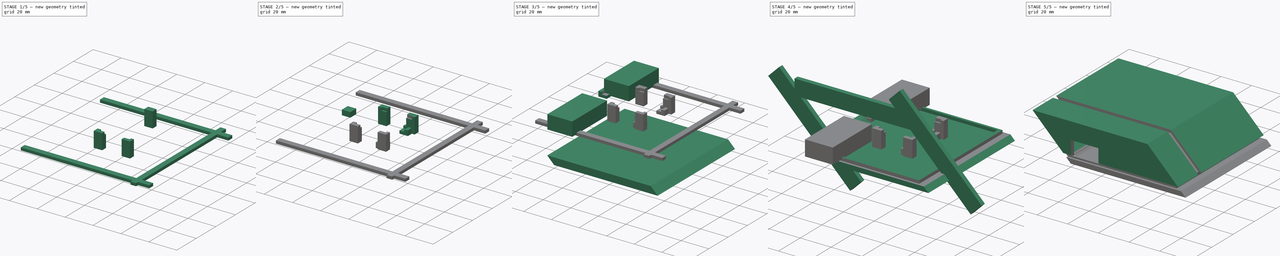
[diagram: build sequence overview — one tinted view per stage of 5, left to right]
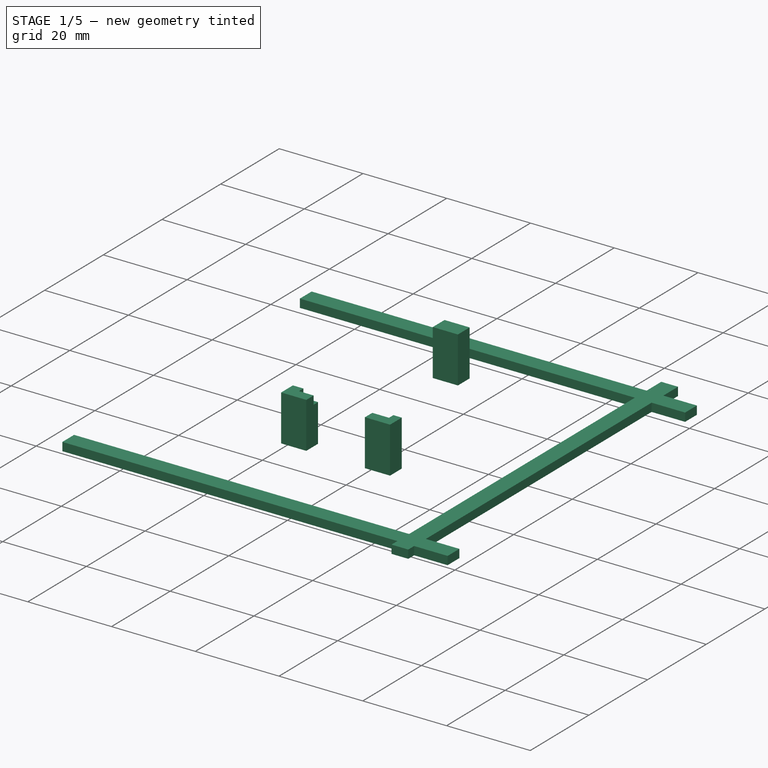
[diagram: stage 1 of 5 — iso view after this stage's code; geometry added in this stage tinted green]
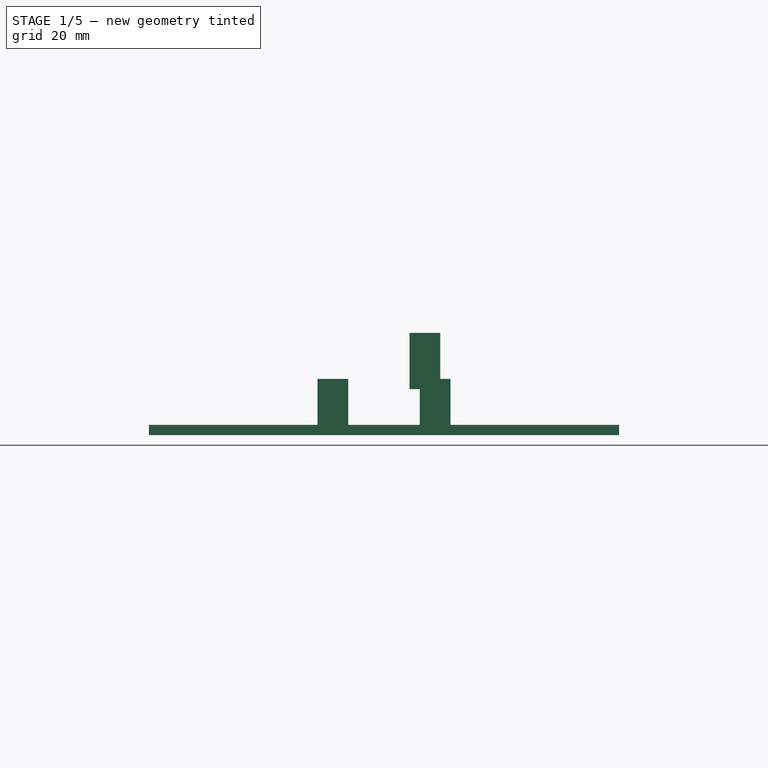
[diagram: stage 1 of 5 — front view after this stage's code; geometry added in this stage tinted green]
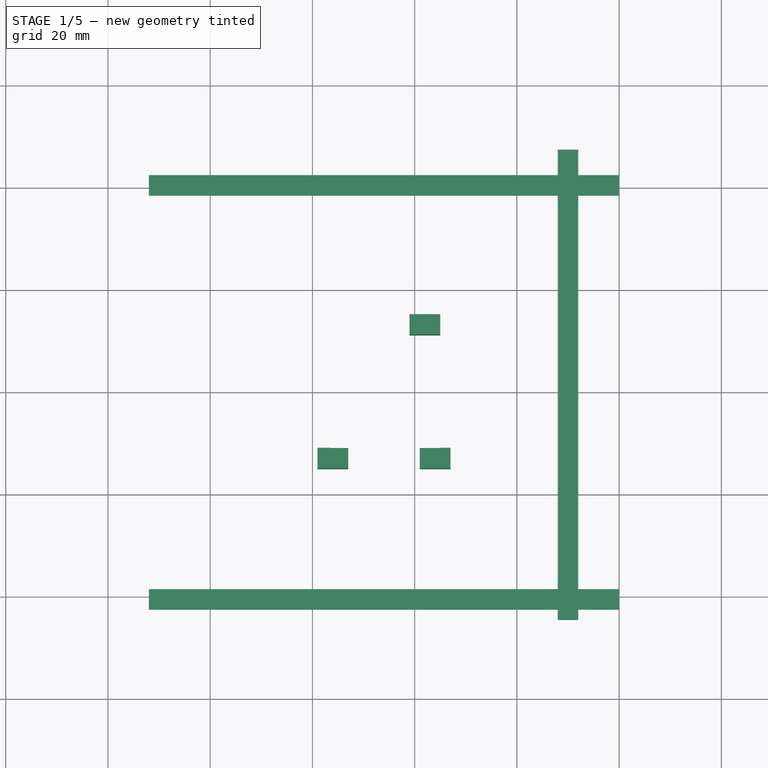
[diagram: stage 1 of 5 — top view after this stage's code; geometry added in this stage tinted green]
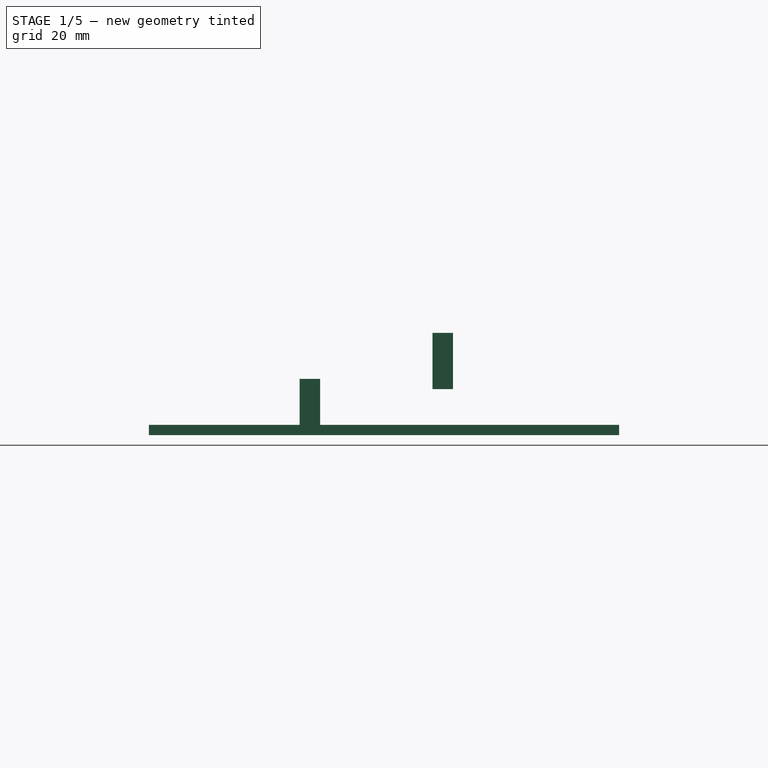
[diagram: stage 1 of 5 — right view after this stage's code; geometry added in this stage tinted green]
FCSTD DOCUMENT  (FreeCAD 0.17R13522 (Git))
Label: case
License: All rights reserved
LicenseURL: http://en.wikipedia.org/wiki/All_rights_reserved
objects: PartDesign::FeatureBase×22, Part::Cut×13, Part::Box×12, Part::MultiFuse×8, Part::Thickness×2, App::DocumentObjectGroup×1, Sketcher::SketchObject×1, PartDesign::Pad×1, PartDesign::Body×1, Part::MultiCommon×1
note: 62 computed .brp shape members not serialized (recipe doc carries the construction recipe); baked Part::Feature solids carry a one-line shape summary decoded from their .brp

FEATURE [Part::Box] Box010  label="Cube010"
  AttacherType = Attacher::AttachEngine3D
  Height = 11
  Length = 6
  Placement = pos=(21,-26,-2) rot=(0,0,1;0rad)
  Width = 4
FEATURE [PartDesign::FeatureBase] Clone015
  BaseFeature = -> Box010
  Placement = pos=(39,-29,7) rot=(0,0,1;0rad)
FEATURE [PartDesign::FeatureBase] Clone016
  BaseFeature = -> Box010
  Placement = pos=(21,-55,-2) rot=(0,0,1;0rad)
FEATURE [PartDesign::FeatureBase] Clone017
  BaseFeature = -> Box010
  Placement = pos=(23.5,-52.5,7) rot=(0,0,1;0rad)
FEATURE [PartDesign::FeatureBase] Clone018
  BaseFeature = -> Box010
  Placement = pos=(41,-55,-2) rot=(0,0,1;0rad)
FEATURE [PartDesign::FeatureBase] Clone019
  BaseFeature = -> Box010
  Placement = pos=(39,-52.5,7) rot=(0,0,1;0rad)
FEATURE [Part::Cut] Cut010
  Base = -> Clone016
  Tool = -> Clone017
FEATURE [Part::Cut] Cut011
  Base = -> Clone018
  Tool = -> Clone019
FEATURE [Part::Box] Box011  label="Cube011"
  AttacherType = Attacher::AttachEngine3D
  Height = 2
  Length = 92
  Placement = pos=(-12,-1.5,-2) rot=(0,0,1;0rad)
  Width = 4
FEATURE [PartDesign::FeatureBase] Clone020
  BaseFeature = -> Box011
  Placement = pos=(-12,-82.5,-2) rot=(0,0,1;0rad)
FEATURE [PartDesign::FeatureBase] Clone021
  BaseFeature = -> Box011
  Placement = pos=(72,-84.5,-2) rot=(0,0,1;1.5708rad)
FEATURE [Part::MultiFuse] Fusion007
  Shapes = -> [Box011,Clone020,Clone021]
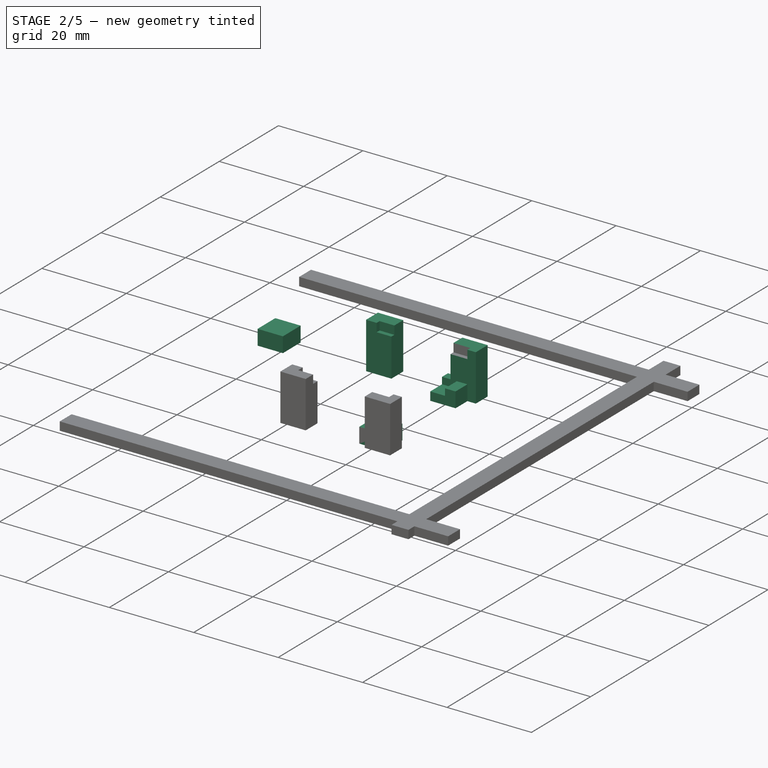
[diagram: stage 2 of 5 — iso view after this stage's code; geometry added in this stage tinted green]
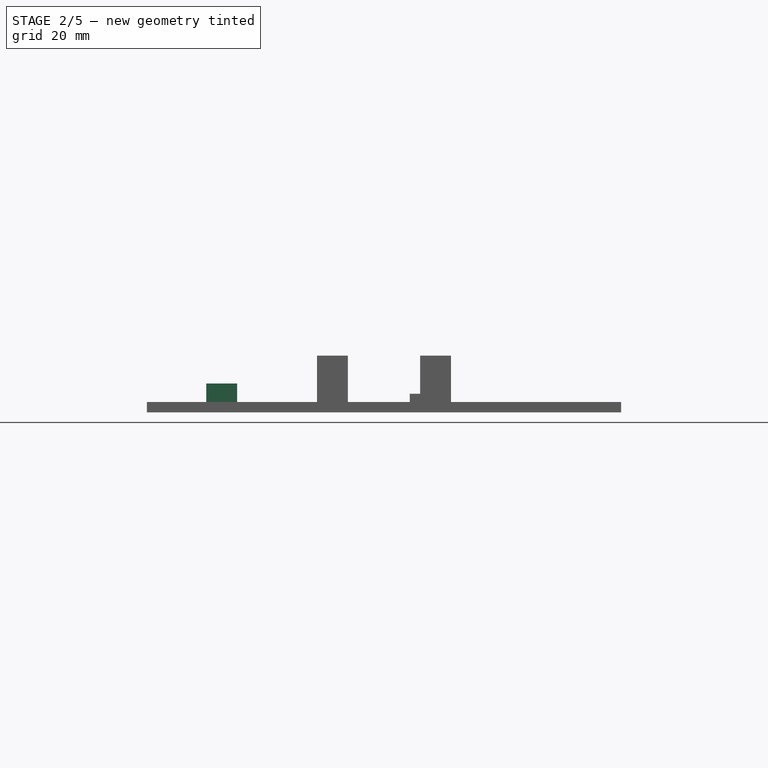
[diagram: stage 2 of 5 — front view after this stage's code; geometry added in this stage tinted green]
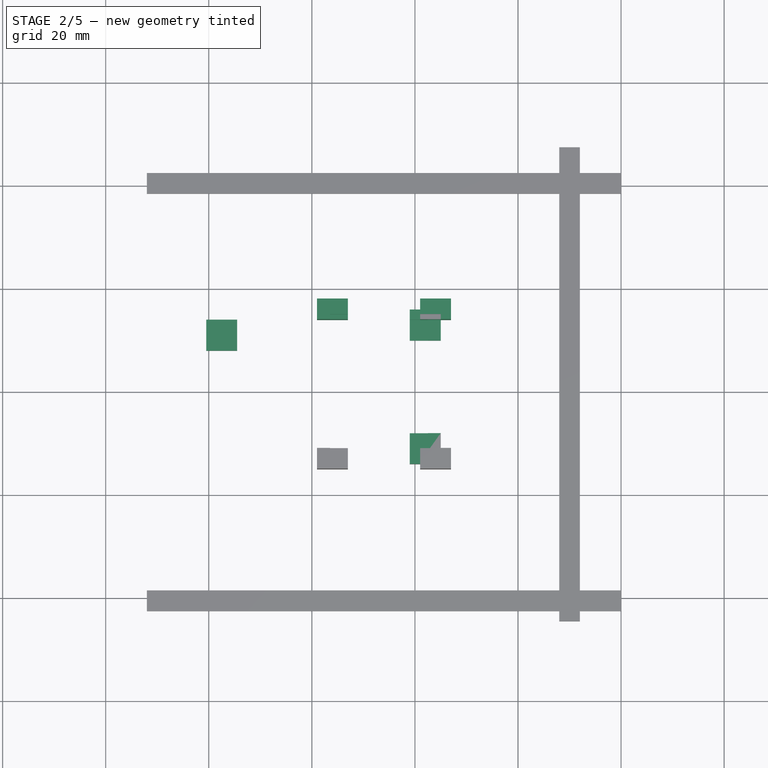
[diagram: stage 2 of 5 — top view after this stage's code; geometry added in this stage tinted green]
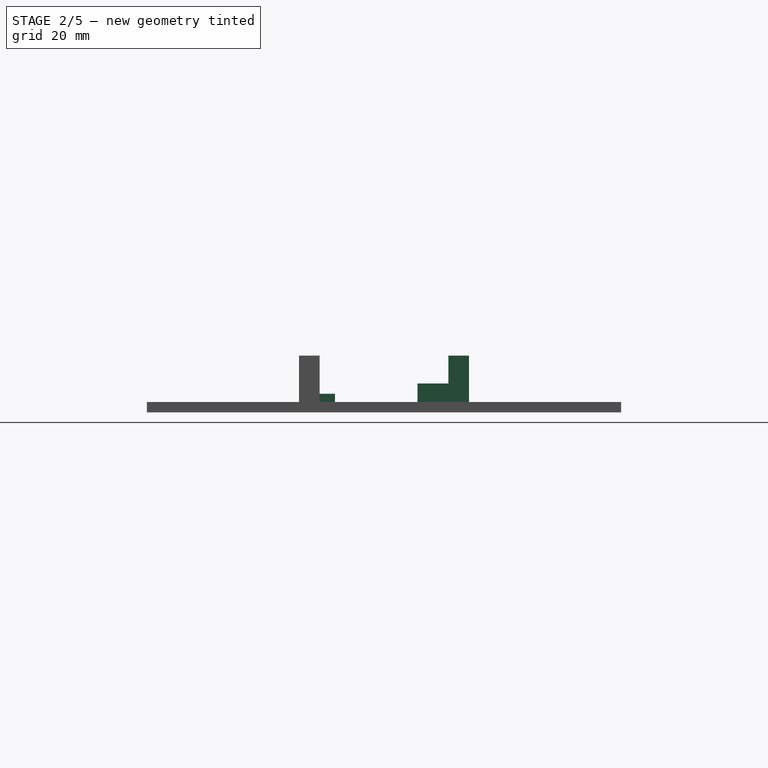
[diagram: stage 2 of 5 — right view after this stage's code; geometry added in this stage tinted green]
FEATURE [Part::Box] Box009  label="Cube009"
  AttacherType = Attacher::AttachEngine3D
  Height = 3.6
  Length = 6
  Placement = pos=(-3,-54,-2) rot=(0,0,1;0rad)
  Width = 6
FEATURE [PartDesign::FeatureBase] Clone007
  BaseFeature = -> Box009
  Placement = pos=(39,-54,-2) rot=(0,0,1;0rad)
FEATURE [PartDesign::FeatureBase] Clone008
  BaseFeature = -> Box009
  Placement = pos=(39,-30,-2) rot=(0,0,1;0rad)
FEATURE [PartDesign::FeatureBase] Clone010
  BaseFeature = -> Box009
  Placement = pos=(-0.5,-32,0) rot=(0,0,1;0rad)
FEATURE [PartDesign::FeatureBase] Clone011
  BaseFeature = -> Box009
  Placement = pos=(36.5,-51.5,0) rot=(0,0,1;0rad)
FEATURE [PartDesign::FeatureBase] Clone012
  BaseFeature = -> Box009
  Placement = pos=(36.5,-32,0) rot=(0,0,1;0rad)
FEATURE [Part::Cut] Cut006
  Base = -> Clone007
  Tool = -> Clone011
FEATURE [Part::Cut] Cut007
  Base = -> Clone008
  Tool = -> Clone012
FEATURE [PartDesign::FeatureBase] Clone013
  BaseFeature = -> Box010
  Placement = pos=(23.5,-29,7) rot=(0,0,1;0rad)
FEATURE [PartDesign::FeatureBase] Clone014
  BaseFeature = -> Box010
  Placement = pos=(41,-26,-2) rot=(0,0,1;0rad)
FEATURE [Part::Cut] Cut008
  Base = -> Box010
  Tool = -> Clone013
FEATURE [Part::Cut] Cut009
  Base = -> Clone014
  Tool = -> Clone015
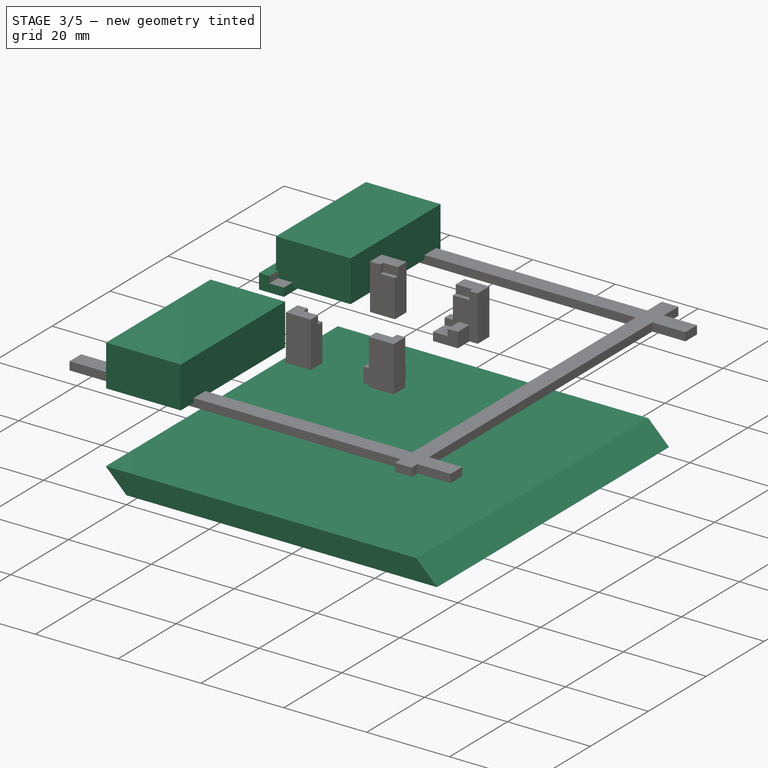
[diagram: stage 3 of 5 — iso view after this stage's code; geometry added in this stage tinted green]
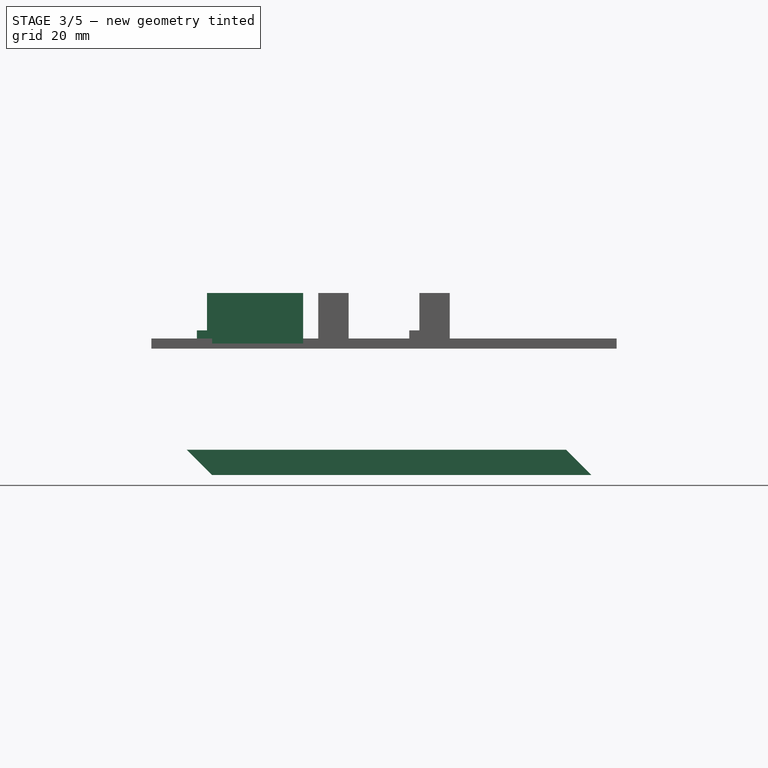
[diagram: stage 3 of 5 — front view after this stage's code; geometry added in this stage tinted green]
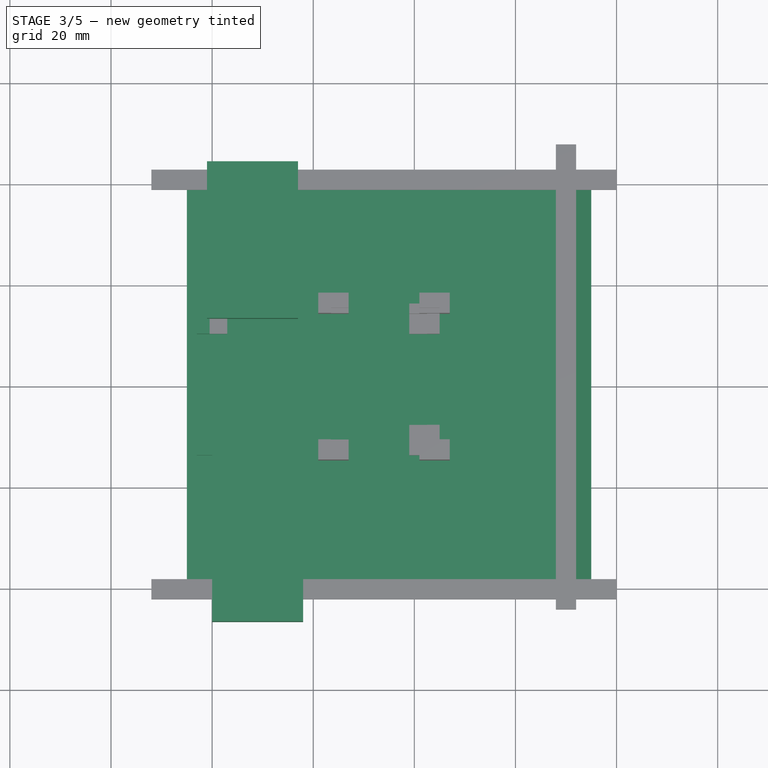
[diagram: stage 3 of 5 — top view after this stage's code; geometry added in this stage tinted green]
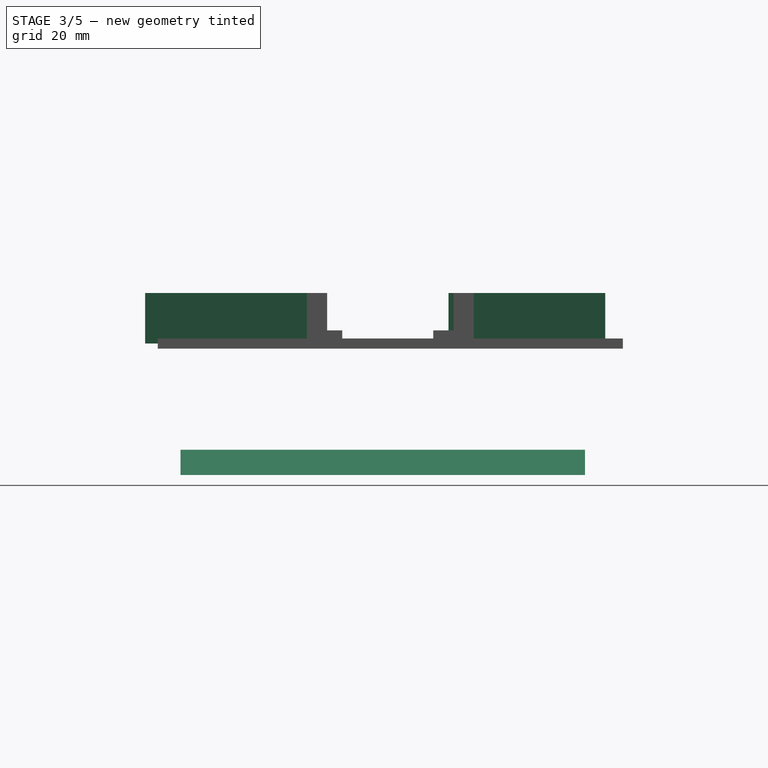
[diagram: stage 3 of 5 — right view after this stage's code; geometry added in this stage tinted green]
FEATURE [App::DocumentObjectGroup] Group  label="imu_pcb"
  Group = -> [Fusion001]
FEATURE [Sketcher::SketchObject] Sketch
  MapMode = 5
  Placement = pos=(0,0,0) rot=(1,0,0;1.5708rad)
  Support = -> [XZ_Plane]
  sketch-geometry (4):
    g0: LineSegment StartX=50 StartY=20 StartZ=0 EndX=75 EndY=-5 EndZ=0
    g1: LineSegment StartX=75 StartY=-5 StartZ=0 EndX=0 EndY=-5 EndZ=0
    g2: LineSegment StartX=0 StartY=-5 StartZ=0 EndX=-25 EndY=20 EndZ=0
    g3: LineSegment StartX=-25 StartY=20 StartZ=0 EndX=50 EndY=20 EndZ=0
  constraints (12):
    c: Coincident(g0,g1)
    c: Coincident(g1,g2)
    c: Coincident(g3,g0)
    c: Angle(g0,g1) = 0.785398
    c: Angle(g-1,g2) = 2.35619
    c: Horizontal(g3)
    c: Horizontal(g1)
    c: DistanceY(g0,g0) = 25
    c: DistanceX(g3,g0) = 75
    c: DistanceX(g-1,g0) = 75
    c: DistanceY(g1,g-1) = 5
    c: Coincident(g2,g3)
FEATURE [PartDesign::Pad] Pad
  Length = 80
  Length2 = 100
  Placement = pos=(0,0,0) rot=(1,0,0;1.5708rad)
  Profile = -> Sketch
  Type = 0
FEATURE [PartDesign::Body] Body
  Group = -> [Sketch,Pad]
  Origin = -> Origin
  Tip = -> Pad
FEATURE [Part::Box] Box005  label="Cube005"
  AttacherType = Attacher::AttachEngine3D
  Height = 10
  Length = 18
  Placement = pos=(0,-87,-1) rot=(0,0,1;0rad)
  Width = 36
FEATURE [Part::Box] Box006  label="Cube006"
  AttacherType = Attacher::AttachEngine3D
  Height = 10
  Length = 18
  Placement = pos=(-1,-27,-1) rot=(0,0,1;0rad)
  Width = 31
FEATURE [PartDesign::FeatureBase] Clone
  BaseFeature = -> Body
FEATURE [Part::Box] Box007  label="Cube007"
  AttacherType = Attacher::AttachEngine3D
  Height = 6
  Length = 101
  Placement = pos=(-18,-100,-6) rot=(0,0,1;0rad)
  Width = 112
FEATURE [Part::MultiCommon] Common
  Placement = pos=(0,0,-22) rot=(0,0,1;0rad)
  Shapes = -> [Clone,Box007]
FEATURE [Part::MultiFuse] Fusion003
  Shapes = -> [Box005,Box006]
FEATURE [PartDesign::FeatureBase] Clone006
  BaseFeature = -> Box009
  Placement = pos=(-3,-30,-2) rot=(0,0,1;0rad)
FEATURE [PartDesign::FeatureBase] Clone009
  BaseFeature = -> Box009
  Placement = pos=(-0.5,-51.5,0) rot=(0,0,1;0rad)
FEATURE [Part::Cut] Cut004
  Base = -> Box009
  Tool = -> Clone009
FEATURE [Part::Cut] Cut005
  Base = -> Clone006
  Tool = -> Clone010
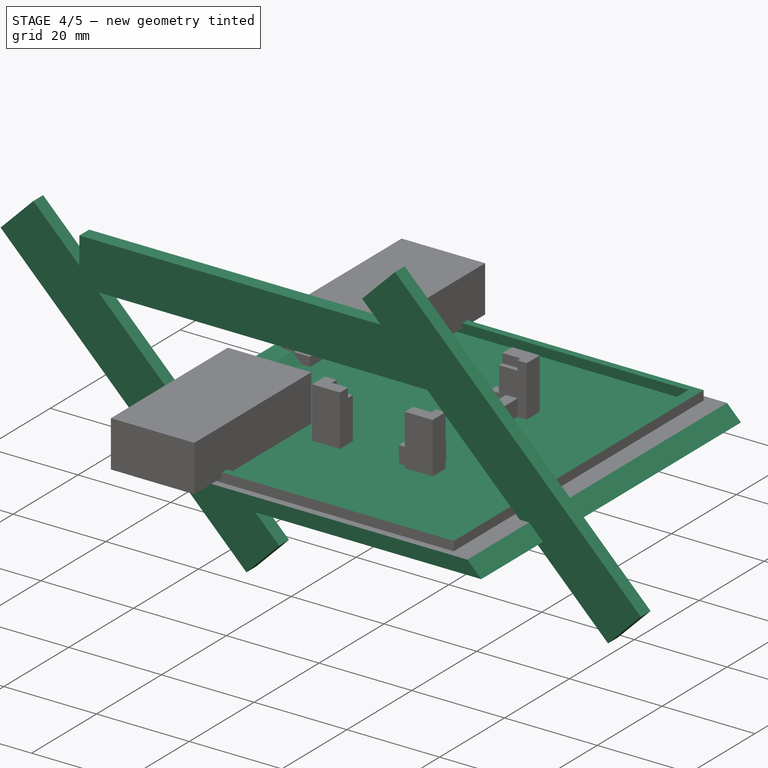
[diagram: stage 4 of 5 — iso view after this stage's code; geometry added in this stage tinted green]
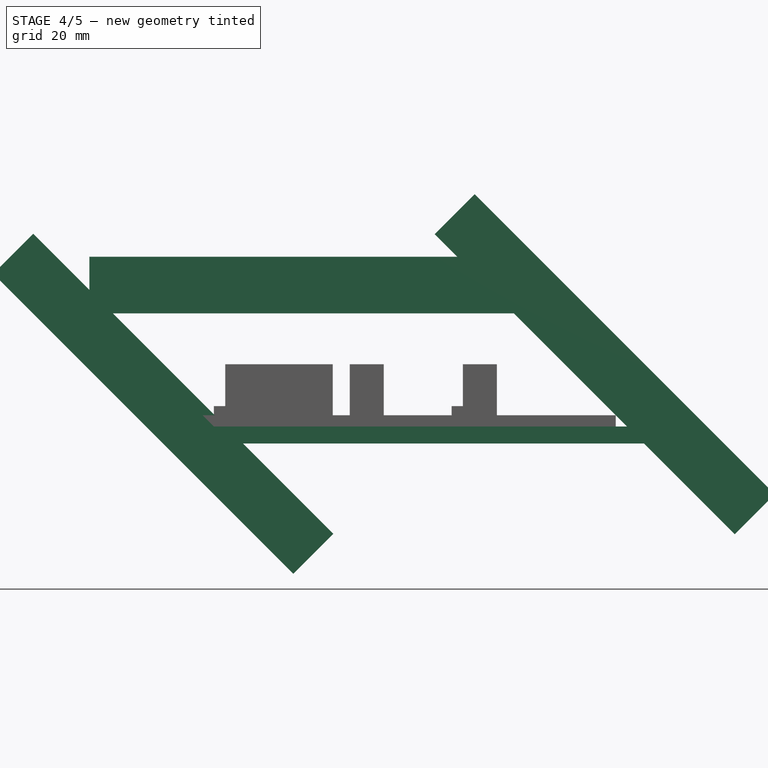
[diagram: stage 4 of 5 — front view after this stage's code; geometry added in this stage tinted green]
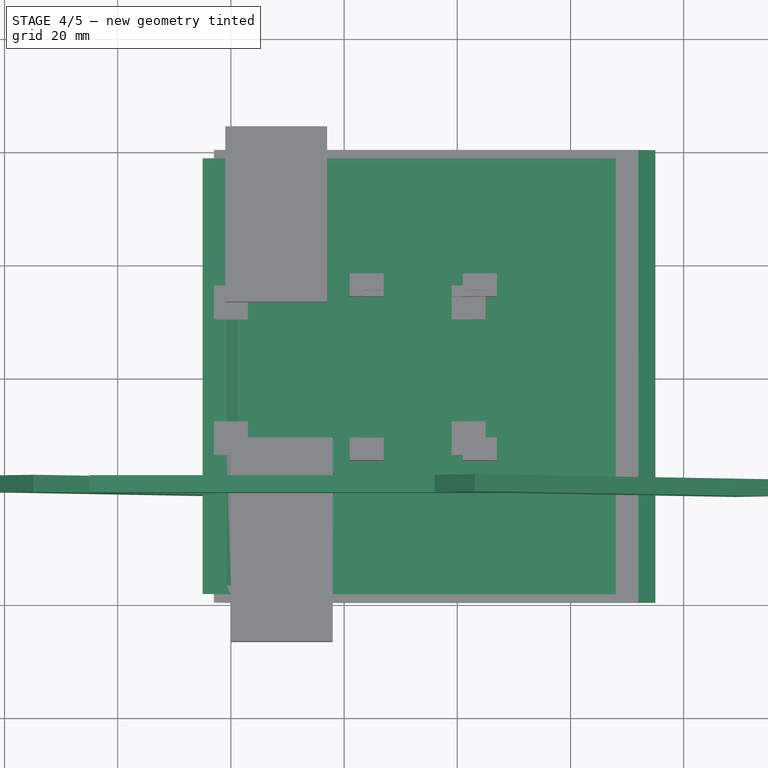
[diagram: stage 4 of 5 — top view after this stage's code; geometry added in this stage tinted green]
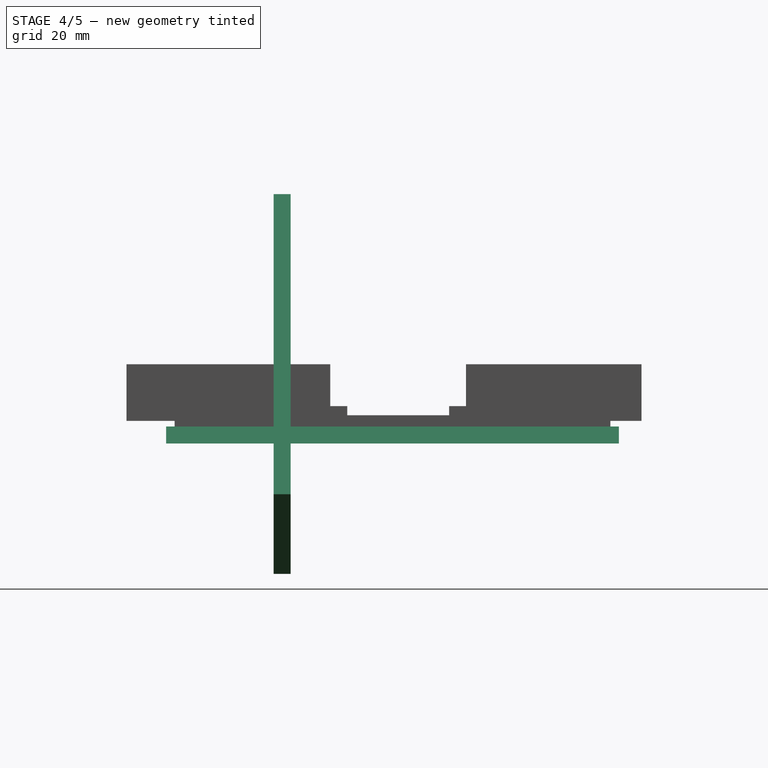
[diagram: stage 4 of 5 — right view after this stage's code; geometry added in this stage tinted green]
FEATURE [Part::Thickness] Thickness
  Faces = -> Common [Face5]
  Intersection = false
  Join = 0
  Mode = 0
  Placement = pos=(0,0,22) rot=(0,0,1;0rad)
  SelfIntersection = false
  Value = -3
FEATURE [Part::Box] Box008  label="Cube008"
  AttacherType = Attacher::AttachEngine3D
  Height = 10
  Length = 75
  Placement = pos=(-42,0,25) rot=(0,1,0;0.785398rad)
  Width = 3
FEATURE [PartDesign::FeatureBase] Clone002
  BaseFeature = -> Box008
  Placement = pos=(-25,0,18) rot=(0,0,1;0rad)
FEATURE [PartDesign::FeatureBase] Clone003
  BaseFeature = -> Box008
  Placement = pos=(36,0,32) rot=(0,1,0;0.785398rad)
FEATURE [Part::MultiFuse] Fusion002
  Placement = pos=(0,-61,0) rot=(0,0,1;0rad)
  Shapes = -> [Box008,Clone002,Clone003]
FEATURE [PartDesign::FeatureBase] Clone004
  BaseFeature = -> Box005
  Placement = pos=(0,-87,-1) rot=(0,0,1;0rad)
FEATURE [PartDesign::FeatureBase] Clone005
  BaseFeature = -> Box006
  Placement = pos=(-1,-27,-1) rot=(0,0,1;0rad)
FEATURE [Part::MultiFuse] Fusion004
  Shapes = -> [Clone004,Clone005]
FEATURE [Part::Cut] Cut002
  Base = -> Thickness
  Tool = -> Fusion003
FEATURE [Part::MultiFuse] Fusion005
  Shapes = -> [Cut002,Cut004,Cut005,Cut006,Cut007]
FEATURE [Part::MultiFuse] Fusion006
  Shapes = -> [Fusion005,Cut008,Cut009,Cut010,Cut011]
FEATURE [Part::Cut] Cut012
  Base = -> Fusion006
  Tool = -> Fusion007
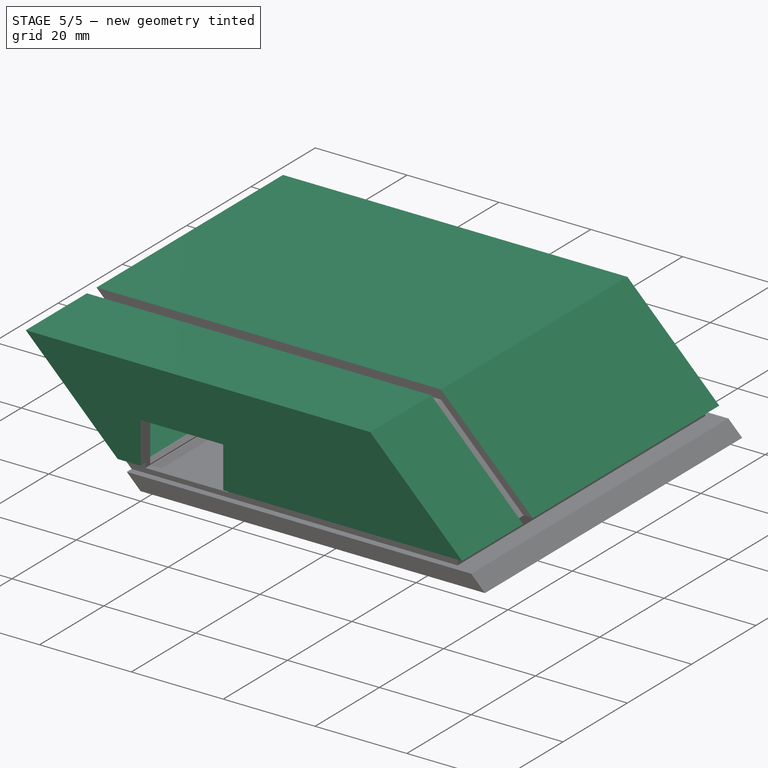
[diagram: stage 5 of 5 — iso view after this stage's code; geometry added in this stage tinted green]
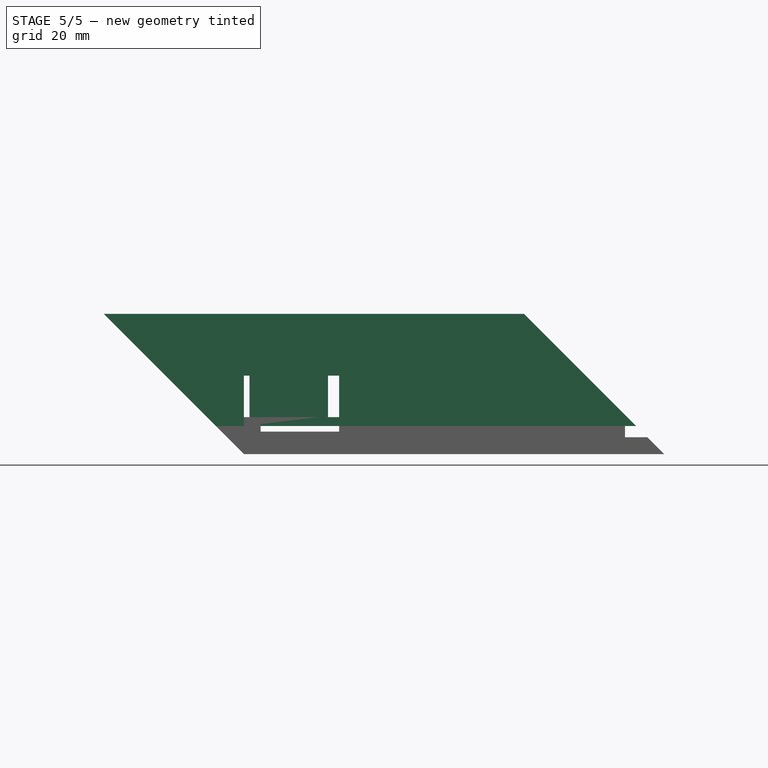
[diagram: stage 5 of 5 — front view after this stage's code; geometry added in this stage tinted green]
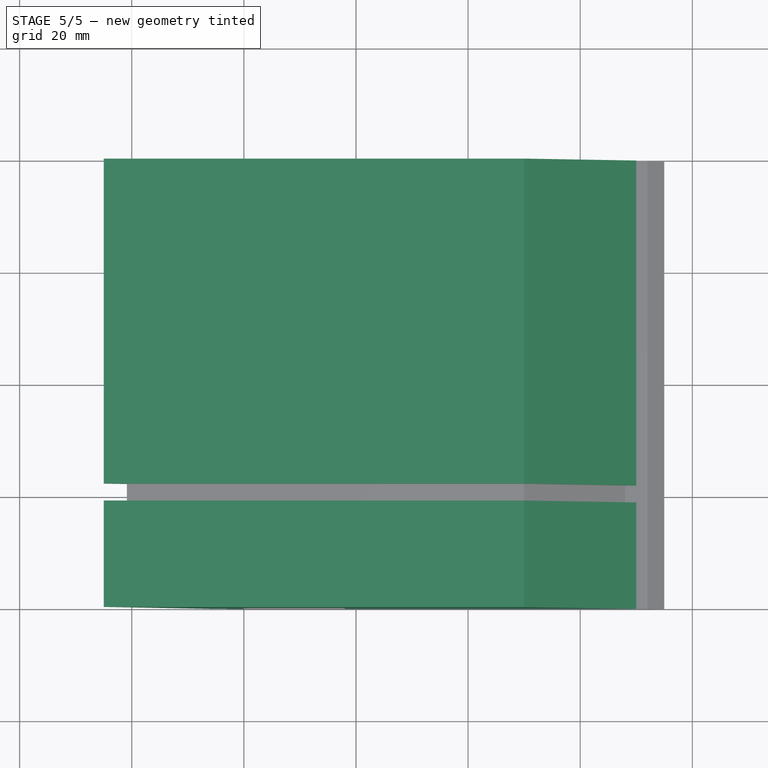
[diagram: stage 5 of 5 — top view after this stage's code; geometry added in this stage tinted green]
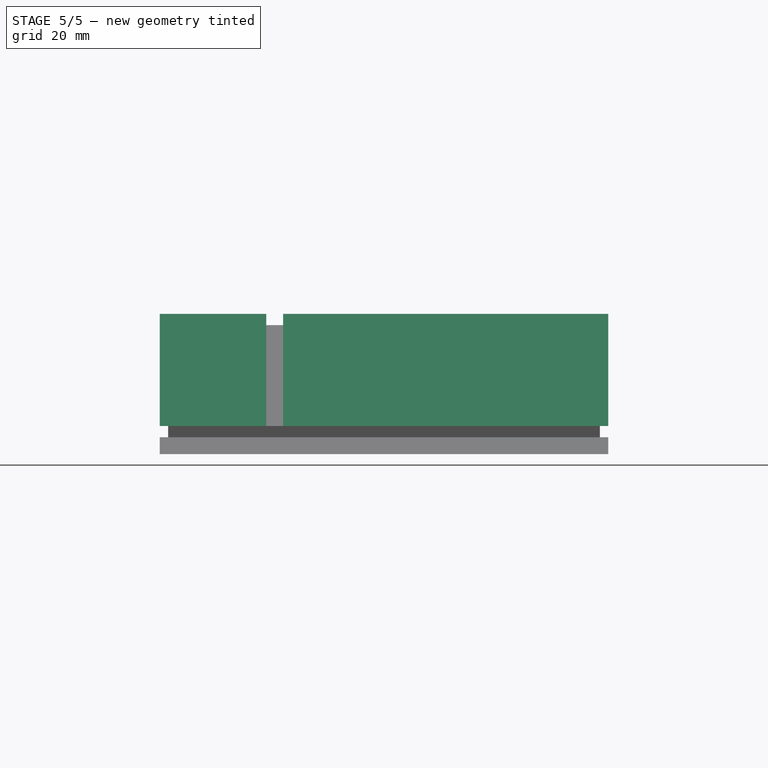
[diagram: stage 5 of 5 — right view after this stage's code; geometry added in this stage tinted green]
FEATURE [Part::Box] Box  label="Cube"
  AttacherType = Attacher::AttachEngine3D
  Height = 1.6
  Length = 42
  Width = 24.5
FEATURE [Part::Box] Box001  label="Cube001"
  AttacherType = Attacher::AttachEngine3D
  Height = 11
  Length = 14
  Placement = pos=(1,16,1.6) rot=(0,0,1;0rad)
  Width = 10
FEATURE [Part::Box] Box002  label="Cube002"
  AttacherType = Attacher::AttachEngine3D
  Height = 3
  Length = 8.3
  Placement = pos=(5,-1,1.6) rot=(0,0,1;0rad)
  Width = 6
FEATURE [Part::MultiFuse] Fusion  label="mcu_pcb"
  Placement = pos=(0,-51,0) rot=(0,0,1;0rad)
  Shapes = -> [Box,Box001,Box002]
FEATURE [Part::Box] Box003  label="Cube003"
  AttacherType = Attacher::AttachEngine3D
  Height = 1.6
  Length = 20.5
  Width = 27
FEATURE [Part::Box] Box004  label="Cube004"
  AttacherType = Attacher::AttachEngine3D
  Height = 8
  Length = 7
  Placement = pos=(0,8,1.6) rot=(0,0,1;0rad)
  Width = 10
FEATURE [Part::MultiFuse] Fusion001  label="imu_pcb001"
  Placement = pos=(24,-52.25,7) rot=(0,0,1;0rad)
  Shapes = -> [Box003,Box004]
FEATURE [PartDesign::FeatureBase] Clone001
  BaseFeature = -> Box007
  Placement = pos=(-18,-100,-6) rot=(0,0,1;0rad)
FEATURE [Part::Cut] Cut
  Base = -> Body
  Tool = -> Clone001
FEATURE [Part::Thickness] Thickness001
  Faces = -> Cut [Face3]
  Intersection = false
  Join = 0
  Mode = 0
  SelfIntersection = false
  Value = -3
FEATURE [Part::Cut] Cut001
  Base = -> Thickness001
  Tool = -> Fusion002
FEATURE [Part::Cut] Cut003
  Base = -> Cut001
  Tool = -> Fusion004
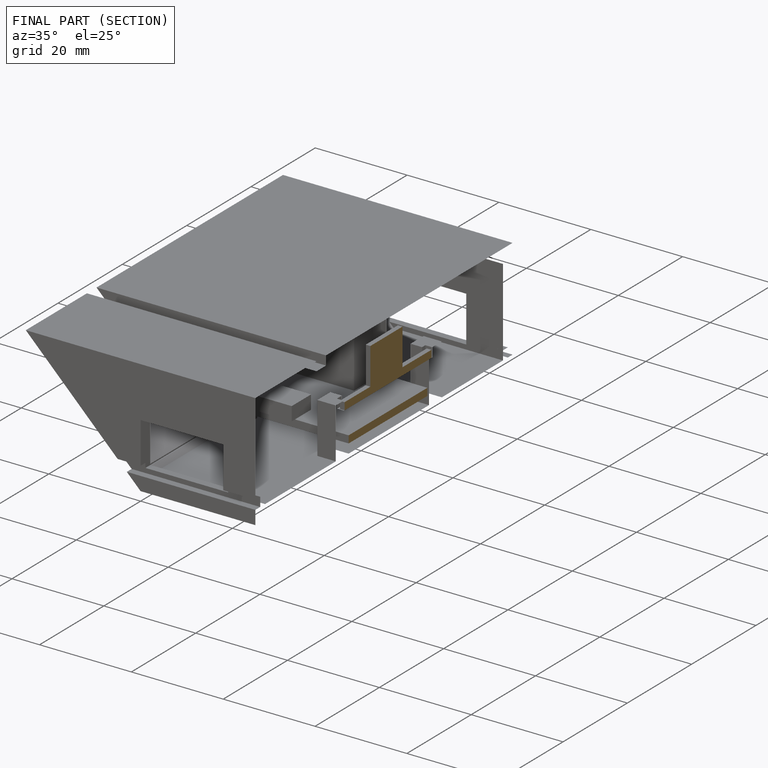
[diagram: finished part — half-section view (interior)]
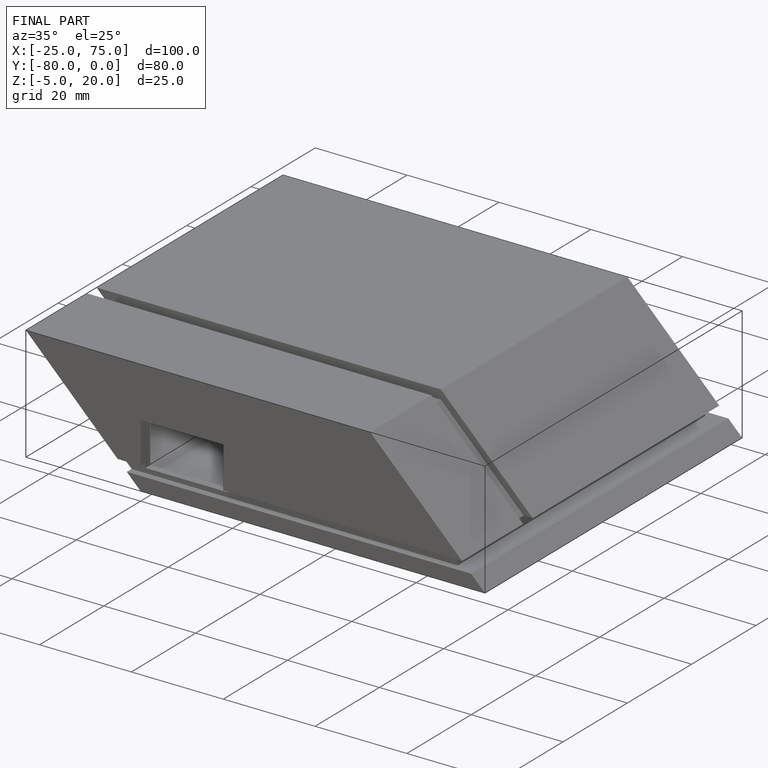
[diagram: finished part — iso view with bounding-box wireframe]
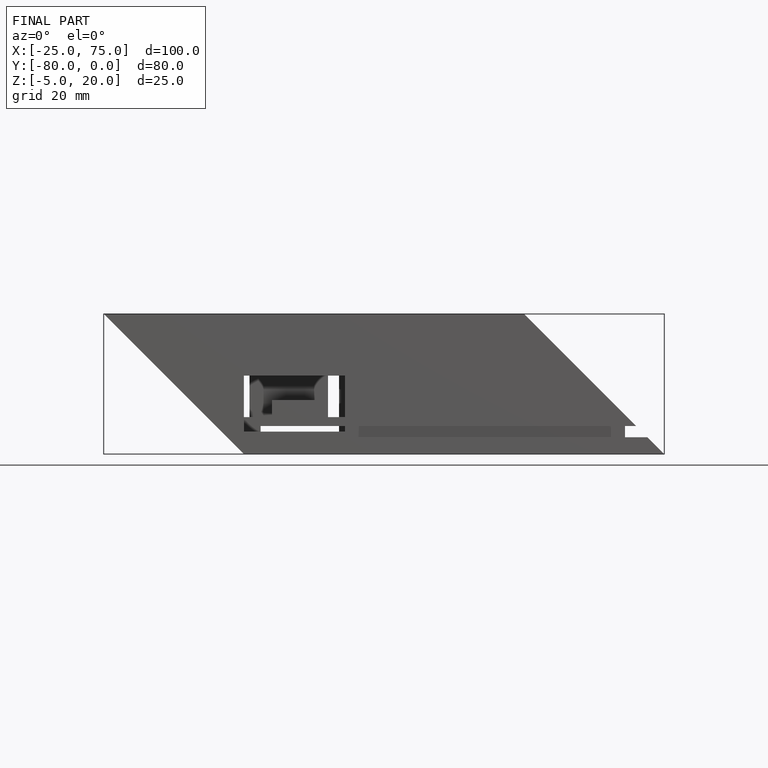
[diagram: finished part — front view with bounding-box wireframe]
